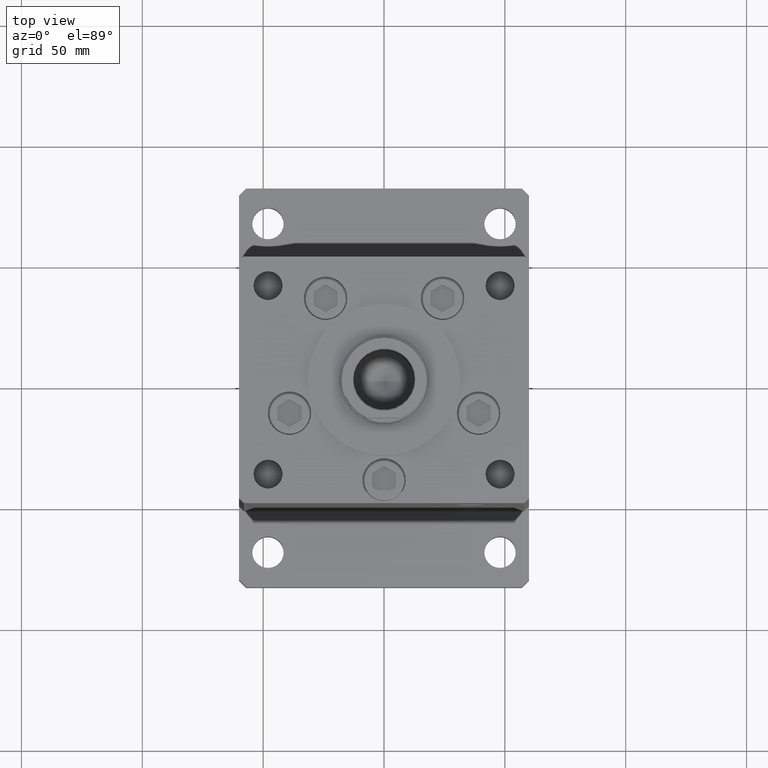
[diagram: clean part render]
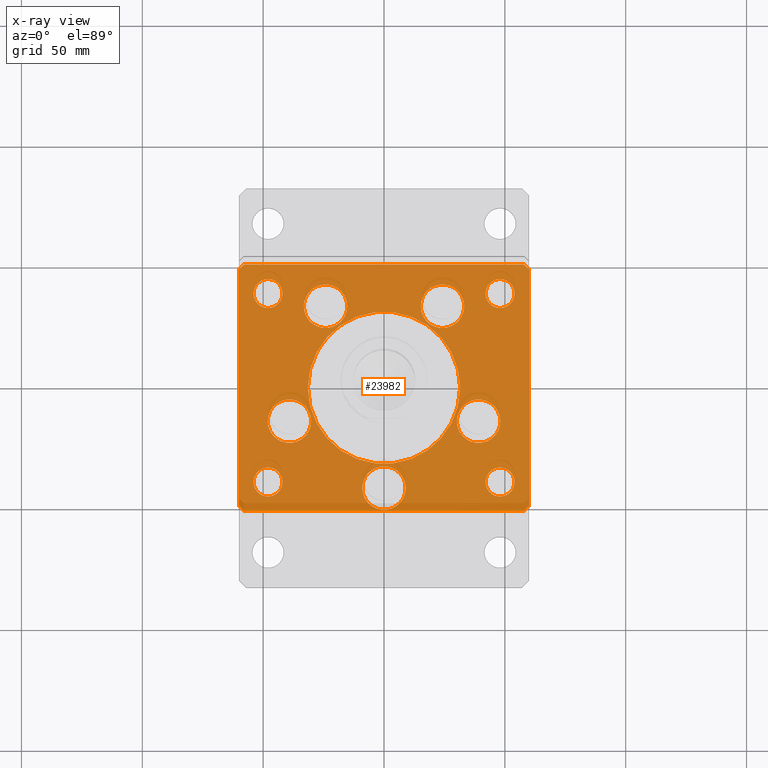
[diagram: x-ray — body ghosted, one internal face saturated and labeled with its STEP entity id]
A machine part, top view, then the same camera in x-ray: the body is ghosted and one INTERNAL B-rep face — a face not visible from any outside direction — is saturated and labeled: STEP entity #23982.
In plain terms, the highlighted planar face has unit normal (0, 0, -1).
Its self-contained STEP definition (entity closure, byte-faithful):
#177 = EDGE_CURVE ( 'NONE', #9360, #44668, #5357, .T. ) ;
#516 = CARTESIAN_POINT ( 'NONE',  ( 48.00000000000000000, 38.99999999999999289, 0.000000000000000000 ) ) ;
#536 = DIRECTION ( 'NONE',  ( 1.000000000000000000, 0.000000000000000000, 0.000000000000000000 ) ) ;
#776 = VECTOR ( 'NONE', #22154, 1000.000000000000000 ) ;
#854 = EDGE_LOOP ( 'NONE', ( #16246, #15075 ) ) ;
#968 = DIRECTION ( 'NONE',  ( 0.000000000000000000, -0.000000000000000000, -1.000000000000000000 ) ) ;
#1878 = VERTEX_POINT ( 'NONE', #41530 ) ;
#2426 = FACE_BOUND ( 'NONE', #854, .T. ) ;
#2559 = EDGE_CURVE ( 'NONE', #4193, #34578, #25395, .T. ) ;
#2581 = AXIS2_PLACEMENT_3D ( 'NONE', #39338, #17630, #51000 ) ;
#2692 = EDGE_LOOP ( 'NONE', ( #52851, #38921, #30124, #28926, #47730, #52508, #33335, #40584 ) ) ;
#2739 = CARTESIAN_POINT ( 'NONE',  ( -39.12657522565562829, -13.83333333333333925, 0.000000000000000000 ) ) ;
#2988 = DIRECTION ( 'NONE',  ( -0.7071067811865487940, 0.7071067811865463515, 0.000000000000000000 ) ) ;
#2997 = ORIENTED_EDGE ( 'NONE', *, *, #44752, .T. ) ;
#3802 = CARTESIAN_POINT ( 'NONE',  ( 59.99999999999994316, 49.00000000000000000, 0.000000000000000000 ) ) ;
#4193 = VERTEX_POINT ( 'NONE', #52174 ) ;
#4424 = DIRECTION ( 'NONE',  ( -7.080503983578803823E-16, 1.000000000000000000, 0.000000000000000000 ) ) ;
#4684 = DIRECTION ( 'NONE',  ( 0.000000000000000000, -0.000000000000000000, -1.000000000000000000 ) ) ;
#4708 = CARTESIAN_POINT ( 'NONE',  ( 58.00000000000000000, -51.00000000000000711, 0.000000000000000000 ) ) ;
#5045 = EDGE_CURVE ( 'NONE', #1878, #49104, #13618, .T. ) ;
#5084 = DIRECTION ( 'NONE',  ( 1.000000000000000000, 0.000000000000000000, 0.000000000000000000 ) ) ;
#5230 = CARTESIAN_POINT ( 'NONE',  ( -30.12657522565562829, -13.83333333333333748, 0.000000000000000000 ) ) ;
#5357 = CIRCLE ( 'NONE', #13138, 6.000000000000005329 ) ;
#5383 = CARTESIAN_POINT ( 'NONE',  ( -54.00000000000000711, -39.00000000000000000, 0.000000000000000000 ) ) ;
#5523 = CARTESIAN_POINT ( 'NONE',  ( -54.00000000000000711, 39.00000000000000000, 0.000000000000000000 ) ) ;
#5579 = CARTESIAN_POINT ( 'NONE',  ( 31.50000000000000000, -1.387778780781445676E-14, 0.000000000000000000 ) ) ;
#5977 = EDGE_CURVE ( 'NONE', #36450, #51519, #21549, .T. ) ;
#6471 = LINE ( 'NONE', #26843, #17040 ) ;
#6968 = DIRECTION ( 'NONE',  ( 0.000000000000000000, -0.000000000000000000, -1.000000000000000000 ) ) ;
#7030 = AXIS2_PLACEMENT_3D ( 'NONE', #9734, #26038, #30101 ) ;
#7438 = EDGE_CURVE ( 'NONE', #15743, #28307, #51505, .T. ) ;
#8100 = ORIENTED_EDGE ( 'NONE', *, *, #14543, .T. ) ;
#8479 = CARTESIAN_POINT ( 'NONE',  ( -48.00000000000000000, 39.00000000000000000, 0.000000000000000000 ) ) ;
#8529 = AXIS2_PLACEMENT_3D ( 'NONE', #24107, #52848, #23828 ) ;
#8775 = AXIS2_PLACEMENT_3D ( 'NONE', #9446, #38740, #18105 ) ;
#8968 = EDGE_LOOP ( 'NONE', ( #14194, #38718 ) ) ;
#9103 = VERTEX_POINT ( 'NONE', #5383 ) ;
#9142 = AXIS2_PLACEMENT_3D ( 'NONE', #27000, #43550, #10165 ) ;
#9360 = VERTEX_POINT ( 'NONE', #47901 ) ;
#9446 = CARTESIAN_POINT ( 'NONE',  ( 39.12657522565562829, -13.83333333333332860, 0.000000000000000000 ) ) ;
#9579 = VERTEX_POINT ( 'NONE', #5523 ) ;
#9711 = EDGE_CURVE ( 'NONE', #51054, #11178, #19599, .T. ) ;
#9734 = CARTESIAN_POINT ( 'NONE',  ( 48.00000000000000000, -38.99999999999999289, 0.000000000000000000 ) ) ;
#10150 = ORIENTED_EDGE ( 'NONE', *, *, #22948, .T. ) ;
#10165 = DIRECTION ( 'NONE',  ( 1.000000000000000000, 0.000000000000000000, 0.000000000000000000 ) ) ;
#10451 = CARTESIAN_POINT ( 'NONE',  ( -41.99999999999999289, 39.00000000000000000, 0.000000000000000000 ) ) ;
#10512 = CARTESIAN_POINT ( 'NONE',  ( -41.99999999999999289, -39.00000000000000000, 0.000000000000000000 ) ) ;
#10744 = LINE ( 'NONE', #51440, #776 ) ;
#11178 = VERTEX_POINT ( 'NONE', #4708 ) ;
#11891 = FACE_BOUND ( 'NONE', #46934, .T. ) ;
#12347 = CARTESIAN_POINT ( 'NONE',  ( 48.00000000000000000, 38.99999999999999289, 0.000000000000000000 ) ) ;
#12428 = VERTEX_POINT ( 'NONE', #18722 ) ;
#12825 = AXIS2_PLACEMENT_3D ( 'NONE', #16279, #17356, #33116 ) ;
#12828 = CARTESIAN_POINT ( 'NONE',  ( 9.000000000000005329, -41.50000000000000000, 0.000000000000000000 ) ) ;
#12988 = DIRECTION ( 'NONE',  ( -0.000000000000000000, 0.000000000000000000, 1.000000000000000000 ) ) ;
#13138 = AXIS2_PLACEMENT_3D ( 'NONE', #24046, #6968, #31926 ) ;
#13186 = VECTOR ( 'NONE', #2988, 1000.000000000000000 ) ;
#13577 = CARTESIAN_POINT ( 'NONE',  ( -33.19288941894912170, 33.71875000000000000, 0.000000000000000000 ) ) ;
#13618 = LINE ( 'NONE', #42138, #48827 ) ;
#14036 = ORIENTED_EDGE ( 'NONE', *, *, #25738, .T. ) ;
#14194 = ORIENTED_EDGE ( 'NONE', *, *, #14843, .T. ) ;
#14543 = EDGE_CURVE ( 'NONE', #17976, #49629, #30922, .T. ) ;
#14793 = CARTESIAN_POINT ( 'NONE',  ( -48.00000000000000000, -39.00000000000000000, 0.000000000000000000 ) ) ;
#14843 = EDGE_CURVE ( 'NONE', #12428, #27188, #44780, .T. ) ;
#15075 = ORIENTED_EDGE ( 'NONE', *, *, #26303, .F. ) ;
#15132 = DIRECTION ( 'NONE',  ( 0.7071067811865474617, -0.7071067811865474617, 0.000000000000000000 ) ) ;
#15743 = VERTEX_POINT ( 'NONE', #16757 ) ;
#16246 = ORIENTED_EDGE ( 'NONE', *, *, #33251, .F. ) ;
#16279 = CARTESIAN_POINT ( 'NONE',  ( 39.12657522565562829, -13.83333333333332860, 0.000000000000000000 ) ) ;
#16473 = CARTESIAN_POINT ( 'NONE',  ( 54.00000000000000711, 38.99999999999999289, 0.000000000000000000 ) ) ;
#16530 = CARTESIAN_POINT ( 'NONE',  ( -57.99999999999997868, -51.00000000000001421, 0.000000000000000000 ) ) ;
#16677 = DIRECTION ( 'NONE',  ( 0.000000000000000000, -0.000000000000000000, -1.000000000000000000 ) ) ;
#16757 = CARTESIAN_POINT ( 'NONE',  ( -48.12657522565562829, -13.83333333333333925, 0.000000000000000000 ) ) ;
#17040 = VECTOR ( 'NONE', #15132, 1000.000000000000114 ) ;
#17046 = ORIENTED_EDGE ( 'NONE', *, *, #43842, .F. ) ;
#17167 = VERTEX_POINT ( 'NONE', #5579 ) ;
#17243 = EDGE_CURVE ( 'NONE', #11178, #1878, #40021, .T. ) ;
#17356 = DIRECTION ( 'NONE',  ( 0.000000000000000000, -0.000000000000000000, -1.000000000000000000 ) ) ;
#17490 = DIRECTION ( 'NONE',  ( 0.000000000000000000, -0.000000000000000000, -1.000000000000000000 ) ) ;
#17630 = DIRECTION ( 'NONE',  ( 0.000000000000000000, 0.000000000000000000, 1.000000000000000000 ) ) ;
#17976 = VERTEX_POINT ( 'NONE', #34089 ) ;
#18043 = CARTESIAN_POINT ( 'NONE',  ( -48.00000000000000000, -39.00000000000000000, 0.000000000000000000 ) ) ;
#18083 = VERTEX_POINT ( 'NONE', #31100 ) ;
#18099 = ORIENTED_EDGE ( 'NONE', *, *, #41256, .F. ) ;
#18105 = DIRECTION ( 'NONE',  ( 1.000000000000000000, 0.000000000000000000, 0.000000000000000000 ) ) ;
#18427 = VERTEX_POINT ( 'NONE', #39711 ) ;
#18621 = AXIS2_PLACEMENT_3D ( 'NONE', #516, #12988, #29551 ) ;
#18722 = CARTESIAN_POINT ( 'NONE',  ( 15.19288941894911105, 33.71875000000000711, 0.000000000000000000 ) ) ;
#18817 = AXIS2_PLACEMENT_3D ( 'NONE', #12347, #48970, #48697 ) ;
#18961 = ORIENTED_EDGE ( 'NONE', *, *, #177, .T. ) ;
#18975 = FACE_OUTER_BOUND ( 'NONE', #2692, .T. ) ;
#18997 = EDGE_CURVE ( 'NONE', #34598, #51054, #6471, .T. ) ;
#19312 = VERTEX_POINT ( 'NONE', #42275 ) ;
#19599 = LINE ( 'NONE', #16530, #42037 ) ;
#20427 = CARTESIAN_POINT ( 'NONE',  ( 41.99999999999999289, 38.99999999999999289, 0.000000000000000000 ) ) ;
#20591 = CARTESIAN_POINT ( 'NONE',  ( -48.00000000000000000, 39.00000000000000000, 0.000000000000000000 ) ) ;
#20694 = DIRECTION ( 'NONE',  ( -0.000000000000000000, 0.000000000000000000, 1.000000000000000000 ) ) ;
#20798 = CIRCLE ( 'NONE', #2581, 31.50000000000000000 ) ;
#21192 = AXIS2_PLACEMENT_3D ( 'NONE', #31078, #52205, #27009 ) ;
#21261 = CIRCLE ( 'NONE', #9142, 31.50000000000000000 ) ;
#21300 = EDGE_CURVE ( 'NONE', #9103, #26639, #50046, .T. ) ;
#21549 = LINE ( 'NONE', #50310, #35825 ) ;
#21573 = CARTESIAN_POINT ( 'NONE',  ( 5.082284216461515748E-15, -41.50000000000000000, 0.000000000000000000 ) ) ;
#21859 = CARTESIAN_POINT ( 'NONE',  ( -57.99999999999999289, 50.99999999999997868, 0.000000000000000000 ) ) ;
#22154 = DIRECTION ( 'NONE',  ( 0.000000000000000000, -1.000000000000000000, 0.000000000000000000 ) ) ;
#22316 = EDGE_LOOP ( 'NONE', ( #37489, #8100 ) ) ;
#22758 = EDGE_LOOP ( 'NONE', ( #17046, #46591 ) ) ;
#22948 = EDGE_CURVE ( 'NONE', #18427, #29890, #36203, .T. ) ;
#22991 = ORIENTED_EDGE ( 'NONE', *, *, #7438, .T. ) ;
#23123 = AXIS2_PLACEMENT_3D ( 'NONE', #45590, #38241, #536 ) ;
#23215 = DIRECTION ( 'NONE',  ( 1.000000000000000000, 0.000000000000000000, 0.000000000000000000 ) ) ;
#23312 = FACE_BOUND ( 'NONE', #38936, .T. ) ;
#23828 = DIRECTION ( 'NONE',  ( 1.000000000000000000, 0.000000000000000000, 0.000000000000000000 ) ) ;
#23982 = ADVANCED_FACE ( 'NONE', ( #43675, #31453, #52584, #32519, #23312, #49060, #2426, #31987, #11891, #18975, #43944 ), #35784, .T. ) ;
#24046 = CARTESIAN_POINT ( 'NONE',  ( 48.00000000000000000, -38.99999999999999289, 0.000000000000000000 ) ) ;
#24107 = CARTESIAN_POINT ( 'NONE',  ( 0.000000000000000000, 0.000000000000000000, 0.000000000000000000 ) ) ;
#24291 = CARTESIAN_POINT ( 'NONE',  ( 24.19288941894911460, 33.71875000000000711, 0.000000000000000000 ) ) ;
#24661 = EDGE_CURVE ( 'NONE', #29890, #18427, #27602, .T. ) ;
#25055 = DIRECTION ( 'NONE',  ( 1.000000000000000000, 0.000000000000000000, 0.000000000000000000 ) ) ;
#25395 = CIRCLE ( 'NONE', #41848, 9.000000000000000000 ) ;
#25738 = EDGE_CURVE ( 'NONE', #28307, #15743, #45496, .T. ) ;
#26038 = DIRECTION ( 'NONE',  ( 0.000000000000000000, -0.000000000000000000, -1.000000000000000000 ) ) ;
#26303 = EDGE_CURVE ( 'NONE', #46024, #50668, #27316, .T. ) ;
#26639 = VERTEX_POINT ( 'NONE', #10512 ) ;
#26843 = CARTESIAN_POINT ( 'NONE',  ( -60.00000000000000000, -49.00000000000000000, 0.000000000000000000 ) ) ;
#26901 = VERTEX_POINT ( 'NONE', #10451 ) ;
#27000 = CARTESIAN_POINT ( 'NONE',  ( 0.000000000000000000, -1.387778780781445676E-14, 0.000000000000000000 ) ) ;
#27009 = DIRECTION ( 'NONE',  ( 1.000000000000000000, 0.000000000000000000, 0.000000000000000000 ) ) ;
#27188 = VERTEX_POINT ( 'NONE', #27749 ) ;
#27316 = CIRCLE ( 'NONE', #18621, 6.000000000000005329 ) ;
#27389 = AXIS2_PLACEMENT_3D ( 'NONE', #20591, #41215, #42291 ) ;
#27602 = CIRCLE ( 'NONE', #8775, 9.000000000000001776 ) ;
#27696 = LINE ( 'NONE', #52621, #13186 ) ;
#27749 = CARTESIAN_POINT ( 'NONE',  ( 33.19288941894911460, 33.71875000000000711, 0.000000000000000000 ) ) ;
#28095 = EDGE_CURVE ( 'NONE', #19312, #17167, #21261, .T. ) ;
#28307 = VERTEX_POINT ( 'NONE', #5230 ) ;
#28631 = DIRECTION ( 'NONE',  ( 1.000000000000000000, 0.000000000000000000, 0.000000000000000000 ) ) ;
#28840 = ORIENTED_EDGE ( 'NONE', *, *, #21300, .T. ) ;
#28843 = EDGE_CURVE ( 'NONE', #26901, #9579, #37762, .T. ) ;
#28926 = ORIENTED_EDGE ( 'NONE', *, *, #5045, .T. ) ;
#29551 = DIRECTION ( 'NONE',  ( 1.000000000000000000, 0.000000000000000000, 0.000000000000000000 ) ) ;
#29592 = AXIS2_PLACEMENT_3D ( 'NONE', #24291, #16677, #33240 ) ;
#29890 = VERTEX_POINT ( 'NONE', #30876 ) ;
#30096 = CIRCLE ( 'NONE', #18817, 6.000000000000005329 ) ;
#30101 = DIRECTION ( 'NONE',  ( 1.000000000000000000, 0.000000000000000000, 0.000000000000000000 ) ) ;
#30124 = ORIENTED_EDGE ( 'NONE', *, *, #17243, .T. ) ;
#30425 = CIRCLE ( 'NONE', #7030, 6.000000000000005329 ) ;
#30816 = DIRECTION ( 'NONE',  ( 0.000000000000000000, -0.000000000000000000, -1.000000000000000000 ) ) ;
#30876 = CARTESIAN_POINT ( 'NONE',  ( 30.12657522565562829, -13.83333333333332860, 0.000000000000000000 ) ) ;
#30922 = CIRCLE ( 'NONE', #23123, 9.000000000000000000 ) ;
#31078 = CARTESIAN_POINT ( 'NONE',  ( -39.12657522565562829, -13.83333333333333925, 0.000000000000000000 ) ) ;
#31100 = CARTESIAN_POINT ( 'NONE',  ( -60.00000000000000000, 48.99999999999995737, 0.000000000000000000 ) ) ;
#31099 = CIRCLE ( 'NONE', #44968, 9.000000000000000000 ) ;
#31361 = DIRECTION ( 'NONE',  ( 0.000000000000000000, -0.000000000000000000, -1.000000000000000000 ) ) ;
#31453 = FACE_BOUND ( 'NONE', #22316, .T. ) ;
#31613 = CARTESIAN_POINT ( 'NONE',  ( 58.00000000000000000, -51.00000000000000711, 0.000000000000000000 ) ) ;
#31623 = CARTESIAN_POINT ( 'NONE',  ( 41.99999999999999289, -38.99999999999999289, 0.000000000000000000 ) ) ;
#31926 = DIRECTION ( 'NONE',  ( 1.000000000000000000, 0.000000000000000000, 0.000000000000000000 ) ) ;
#31986 = ORIENTED_EDGE ( 'NONE', *, *, #24661, .T. ) ;
#31987 = FACE_BOUND ( 'NONE', #43406, .T. ) ;
#32519 = FACE_BOUND ( 'NONE', #47470, .T. ) ;
#33116 = DIRECTION ( 'NONE',  ( 1.000000000000000000, 0.000000000000000000, 0.000000000000000000 ) ) ;
#33240 = DIRECTION ( 'NONE',  ( 1.000000000000000000, 0.000000000000000000, 0.000000000000000000 ) ) ;
#33251 = EDGE_CURVE ( 'NONE', #50668, #46024, #30096, .T. ) ;
#33335 = ORIENTED_EDGE ( 'NONE', *, *, #39054, .T. ) ;
#33838 = CARTESIAN_POINT ( 'NONE',  ( 24.19288941894911460, 33.71875000000000711, 0.000000000000000000 ) ) ;
#34047 = DIRECTION ( 'NONE',  ( 1.000000000000000000, 0.000000000000000000, 0.000000000000000000 ) ) ;
#34089 = CARTESIAN_POINT ( 'NONE',  ( -15.19288941894912170, 33.71875000000000000, 0.000000000000000000 ) ) ;
#34578 = VERTEX_POINT ( 'NONE', #12828 ) ;
#34598 = VERTEX_POINT ( 'NONE', #38322 ) ;
#34985 = EDGE_LOOP ( 'NONE', ( #2997, #28840 ) ) ;
#35784 = PLANE ( 'NONE',  #8529 ) ;
#35825 = VECTOR ( 'NONE', #42448, 1000.000000000000000 ) ;
#36044 = ORIENTED_EDGE ( 'NONE', *, *, #28843, .F. ) ;
#36203 = CIRCLE ( 'NONE', #12825, 9.000000000000001776 ) ;
#36450 = VERTEX_POINT ( 'NONE', #44171 ) ;
#36913 = VECTOR ( 'NONE', #52215, 1000.000000000000114 ) ;
#37489 = ORIENTED_EDGE ( 'NONE', *, *, #42480, .T. ) ;
#37508 = DIRECTION ( 'NONE',  ( 1.000000000000000000, 0.000000000000000000, 0.000000000000000000 ) ) ;
#37762 = CIRCLE ( 'NONE', #27389, 6.000000000000005329 ) ;
#38112 = CIRCLE ( 'NONE', #50226, 6.000000000000005329 ) ;
#38241 = DIRECTION ( 'NONE',  ( 0.000000000000000000, -0.000000000000000000, -1.000000000000000000 ) ) ;
#38322 = CARTESIAN_POINT ( 'NONE',  ( -60.00000000000000000, -49.00000000000000000, 0.000000000000000000 ) ) ;
#38512 = AXIS2_PLACEMENT_3D ( 'NONE', #2739, #45337, #48840 ) ;
#38718 = ORIENTED_EDGE ( 'NONE', *, *, #48674, .T. ) ;
#38740 = DIRECTION ( 'NONE',  ( 0.000000000000000000, -0.000000000000000000, -1.000000000000000000 ) ) ;
#38921 = ORIENTED_EDGE ( 'NONE', *, *, #9711, .T. ) ;
#38926 = CIRCLE ( 'NONE', #46696, 6.000000000000005329 ) ;
#38936 = EDGE_LOOP ( 'NONE', ( #39096, #52588 ) ) ;
#38947 = DIRECTION ( 'NONE',  ( 1.000000000000000000, 0.000000000000000000, 0.000000000000000000 ) ) ;
#39054 = EDGE_CURVE ( 'NONE', #51519, #18083, #46034, .T. ) ;
#39096 = ORIENTED_EDGE ( 'NONE', *, *, #2559, .T. ) ;
#39338 = CARTESIAN_POINT ( 'NONE',  ( 0.000000000000000000, -1.387778780781445676E-14, 0.000000000000000000 ) ) ;
#39711 = CARTESIAN_POINT ( 'NONE',  ( 48.12657522565562829, -13.83333333333332682, 0.000000000000000000 ) ) ;
#39990 = EDGE_CURVE ( 'NONE', #34578, #4193, #44079, .T. ) ;
#40021 = LINE ( 'NONE', #31613, #36913 ) ;
#40584 = ORIENTED_EDGE ( 'NONE', *, *, #42022, .T. ) ;
#41215 = DIRECTION ( 'NONE',  ( -0.000000000000000000, 0.000000000000000000, 1.000000000000000000 ) ) ;
#41256 = EDGE_CURVE ( 'NONE', #9579, #26901, #38926, .T. ) ;
#41530 = CARTESIAN_POINT ( 'NONE',  ( 60.00000000000001421, -48.99999999999999289, 0.000000000000000000 ) ) ;
#41848 = AXIS2_PLACEMENT_3D ( 'NONE', #21573, #17490, #34047 ) ;
#41941 = ORIENTED_EDGE ( 'NONE', *, *, #48535, .T. ) ;
#42022 = EDGE_CURVE ( 'NONE', #18083, #34598, #10744, .T. ) ;
#42037 = VECTOR ( 'NONE', #51902, 1000.000000000000000 ) ;
#42138 = CARTESIAN_POINT ( 'NONE',  ( 60.00000000000001421, -48.99999999999999289, 0.000000000000000000 ) ) ;
#42275 = CARTESIAN_POINT ( 'NONE',  ( -31.50000000000000000, -1.002015039050029328E-14, 0.000000000000000000 ) ) ;
#42291 = DIRECTION ( 'NONE',  ( 1.000000000000000000, 0.000000000000000000, 0.000000000000000000 ) ) ;
#42448 = DIRECTION ( 'NONE',  ( -1.000000000000000000, -2.392722035830079958E-16, 0.000000000000000000 ) ) ;
#42480 = EDGE_CURVE ( 'NONE', #49629, #17976, #31099, .T. ) ;
#42495 = DIRECTION ( 'NONE',  ( -0.7071067811865451302, -0.7071067811865500152, 0.000000000000000000 ) ) ;
#43406 = EDGE_LOOP ( 'NONE', ( #18961, #41941 ) ) ;
#43550 = DIRECTION ( 'NONE',  ( 0.000000000000000000, 0.000000000000000000, 1.000000000000000000 ) ) ;
#43675 = FACE_BOUND ( 'NONE', #22758, .T. ) ;
#43842 = EDGE_CURVE ( 'NONE', #17167, #19312, #20798, .T. ) ;
#43922 = CARTESIAN_POINT ( 'NONE',  ( -57.99999999999999289, 50.99999999999997868, 0.000000000000000000 ) ) ;
#43944 = FACE_BOUND ( 'NONE', #34985, .T. ) ;
#44014 = AXIS2_PLACEMENT_3D ( 'NONE', #18043, #968, #38947 ) ;
#44036 = VECTOR ( 'NONE', #42495, 1000.000000000000114 ) ;
#44079 = CIRCLE ( 'NONE', #49262, 9.000000000000000000 ) ;
#44171 = CARTESIAN_POINT ( 'NONE',  ( 57.99999999999993605, 51.00000000000000711, 0.000000000000000000 ) ) ;
#44668 = VERTEX_POINT ( 'NONE', #31623 ) ;
#44752 = EDGE_CURVE ( 'NONE', #26639, #9103, #38112, .T. ) ;
#44780 = CIRCLE ( 'NONE', #48993, 9.000000000000001776 ) ;
#44968 = AXIS2_PLACEMENT_3D ( 'NONE', #53521, #4684, #25055 ) ;
#45337 = DIRECTION ( 'NONE',  ( 0.000000000000000000, -0.000000000000000000, -1.000000000000000000 ) ) ;
#45496 = CIRCLE ( 'NONE', #21192, 9.000000000000001776 ) ;
#45590 = CARTESIAN_POINT ( 'NONE',  ( -24.19288941894912170, 33.71875000000000000, 0.000000000000000000 ) ) ;
#46024 = VERTEX_POINT ( 'NONE', #20427 ) ;
#46034 = LINE ( 'NONE', #21859, #44036 ) ;
#46591 = ORIENTED_EDGE ( 'NONE', *, *, #28095, .F. ) ;
#46696 = AXIS2_PLACEMENT_3D ( 'NONE', #8479, #20694, #37508 ) ;
#46934 = EDGE_LOOP ( 'NONE', ( #36044, #18099 ) ) ;
#47470 = EDGE_LOOP ( 'NONE', ( #31986, #10150 ) ) ;
#47730 = ORIENTED_EDGE ( 'NONE', *, *, #51166, .T. ) ;
#47901 = CARTESIAN_POINT ( 'NONE',  ( 54.00000000000000711, -38.99999999999999289, 0.000000000000000000 ) ) ;
#48535 = EDGE_CURVE ( 'NONE', #44668, #9360, #30425, .T. ) ;
#48674 = EDGE_CURVE ( 'NONE', #27188, #12428, #52941, .T. ) ;
#48697 = DIRECTION ( 'NONE',  ( 1.000000000000000000, 0.000000000000000000, 0.000000000000000000 ) ) ;
#48827 = VECTOR ( 'NONE', #4424, 1000.000000000000000 ) ;
#48840 = DIRECTION ( 'NONE',  ( 1.000000000000000000, 0.000000000000000000, 0.000000000000000000 ) ) ;
#48970 = DIRECTION ( 'NONE',  ( -0.000000000000000000, 0.000000000000000000, 1.000000000000000000 ) ) ;
#48993 = AXIS2_PLACEMENT_3D ( 'NONE', #33838, #49856, #5084 ) ;
#49060 = FACE_BOUND ( 'NONE', #50387, .T. ) ;
#49104 = VERTEX_POINT ( 'NONE', #3802 ) ;
#49262 = AXIS2_PLACEMENT_3D ( 'NONE', #51417, #30816, #28631 ) ;
#49629 = VERTEX_POINT ( 'NONE', #13577 ) ;
#49856 = DIRECTION ( 'NONE',  ( 0.000000000000000000, -0.000000000000000000, -1.000000000000000000 ) ) ;
#50046 = CIRCLE ( 'NONE', #44014, 6.000000000000005329 ) ;
#50226 = AXIS2_PLACEMENT_3D ( 'NONE', #14793, #31361, #23215 ) ;
#50310 = CARTESIAN_POINT ( 'NONE',  ( 57.99999999999993605, 51.00000000000000711, 0.000000000000000000 ) ) ;
#50387 = EDGE_LOOP ( 'NONE', ( #22991, #14036 ) ) ;
#50668 = VERTEX_POINT ( 'NONE', #16473 ) ;
#51000 = DIRECTION ( 'NONE',  ( 1.000000000000000000, 0.000000000000000000, 0.000000000000000000 ) ) ;
#51031 = CARTESIAN_POINT ( 'NONE',  ( -57.99999999999997868, -51.00000000000001421, 0.000000000000000000 ) ) ;
#51054 = VERTEX_POINT ( 'NONE', #51031 ) ;
#51166 = EDGE_CURVE ( 'NONE', #49104, #36450, #27696, .T. ) ;
#51417 = CARTESIAN_POINT ( 'NONE',  ( 5.082284216461515748E-15, -41.50000000000000000, 0.000000000000000000 ) ) ;
#51440 = CARTESIAN_POINT ( 'NONE',  ( -60.00000000000000000, 48.99999999999995737, 0.000000000000000000 ) ) ;
#51505 = CIRCLE ( 'NONE', #38512, 9.000000000000001776 ) ;
#51519 = VERTEX_POINT ( 'NONE', #43922 ) ;
#51902 = DIRECTION ( 'NONE',  ( 1.000000000000000000, 1.196361017915039486E-16, 0.000000000000000000 ) ) ;
#52174 = CARTESIAN_POINT ( 'NONE',  ( -8.999999999999994671, -41.50000000000000000, 0.000000000000000000 ) ) ;
#52205 = DIRECTION ( 'NONE',  ( 0.000000000000000000, -0.000000000000000000, -1.000000000000000000 ) ) ;
#52215 = DIRECTION ( 'NONE',  ( 0.7071067811865474617, 0.7071067811865474617, 0.000000000000000000 ) ) ;
#52508 = ORIENTED_EDGE ( 'NONE', *, *, #5977, .T. ) ;
#52584 = FACE_BOUND ( 'NONE', #8968, .T. ) ;
#52588 = ORIENTED_EDGE ( 'NONE', *, *, #39990, .T. ) ;
#52621 = CARTESIAN_POINT ( 'NONE',  ( 59.99999999999994316, 49.00000000000000000, 0.000000000000000000 ) ) ;
#52848 = DIRECTION ( 'NONE',  ( -0.000000000000000000, 0.000000000000000000, 1.000000000000000000 ) ) ;
#52851 = ORIENTED_EDGE ( 'NONE', *, *, #18997, .T. ) ;
#52941 = CIRCLE ( 'NONE', #29592, 9.000000000000001776 ) ;
#53521 = CARTESIAN_POINT ( 'NONE',  ( -24.19288941894912170, 33.71875000000000000, 0.000000000000000000 ) ) ;